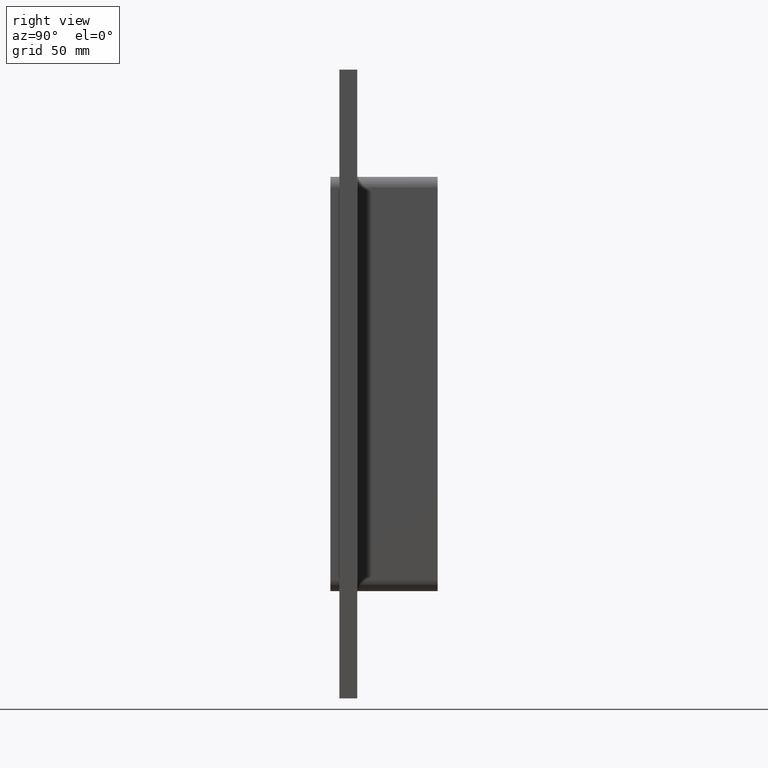
[diagram: clean part render]
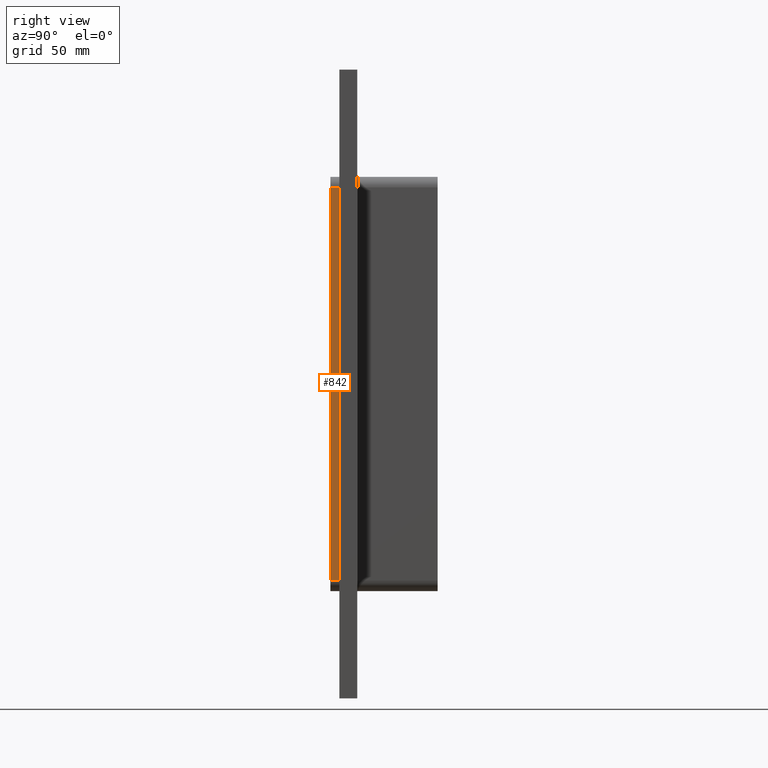
[diagram: same view with one face highlighted and labeled with its STEP entity id]
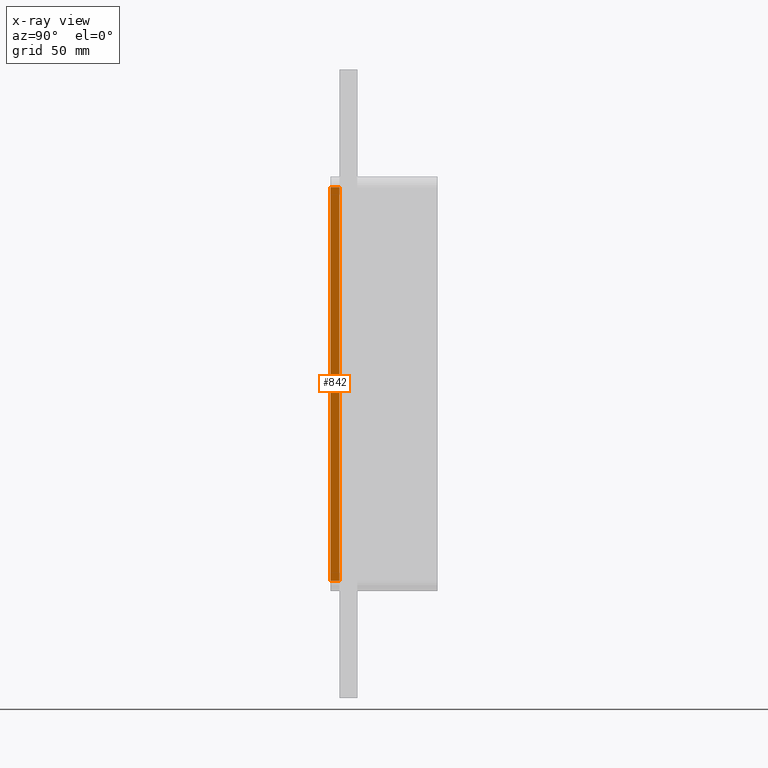
[diagram: x-ray of the same camera — body ghosted, the highlighted face saturated]
A machine part, right view. The second image highlights one B-rep face of the part: STEP entity #842.
The next image is the same camera in x-ray: the body ghosted, the highlighted face saturated — about 0% of this face is hidden behind the body in this view.
In plain terms, the highlighted planar face has unit normal (1, 0, 0).
Its self-contained STEP definition (entity closure, byte-faithful):
#390=CARTESIAN_POINT('',(40.249999999999986,0.0,110.00000000000003));
#391=VERTEX_POINT('',#390);
#401=CARTESIAN_POINT('',(40.249999999999986,0.0,-110.0));
#402=VERTEX_POINT('',#401);
#403=CARTESIAN_POINT('',(40.249999999999986,0.0,-109.99999999999999));
#404=DIRECTION('',(0.0,0.0,1.0));
#405=VECTOR('',#404,220.0);
#406=LINE('',#403,#405);
#407=EDGE_CURVE('',#402,#391,#406,.T.);
#752=CARTESIAN_POINT('',(40.249999999999986,-5.0,-110.0));
#753=VERTEX_POINT('',#752);
#754=CARTESIAN_POINT('',(40.249999999999986,-5.0,-110.0));
#755=DIRECTION('',(0.0,1.0,0.0));
#756=VECTOR('',#755,5.0);
#757=LINE('',#754,#756);
#758=EDGE_CURVE('',#753,#402,#757,.T.);
#819=CARTESIAN_POINT('',(40.249999999999986,0.0,110.00000000000003));
#820=DIRECTION('',(1.0,0.0,0.0));
#821=DIRECTION('',(0.0,0.0,-1.0));
#822=AXIS2_PLACEMENT_3D('',#819,#820,#821);
#823=PLANE('',#822);
#824=ORIENTED_EDGE('',*,*,#407,.T.);
#825=CARTESIAN_POINT('',(40.249999999999986,-5.0,110.00000000000003));
#826=VERTEX_POINT('',#825);
#827=CARTESIAN_POINT('',(40.249999999999986,0.0,110.00000000000003));
#828=DIRECTION('',(0.0,-1.0,0.0));
#829=VECTOR('',#828,5.0);
#830=LINE('',#827,#829);
#831=EDGE_CURVE('',#391,#826,#830,.T.);
#832=ORIENTED_EDGE('',*,*,#831,.T.);
#833=CARTESIAN_POINT('',(40.249999999999986,-5.0,-110.0));
#834=DIRECTION('',(0.0,0.0,1.0));
#835=VECTOR('',#834,220.00000000000003);
#836=LINE('',#833,#835);
#837=EDGE_CURVE('',#753,#826,#836,.T.);
#838=ORIENTED_EDGE('',*,*,#837,.F.);
#839=ORIENTED_EDGE('',*,*,#758,.T.);
#840=EDGE_LOOP('',(#824,#832,#838,#839));
#841=FACE_OUTER_BOUND('',#840,.T.);
#842=ADVANCED_FACE('',(#841),#823,.T.);